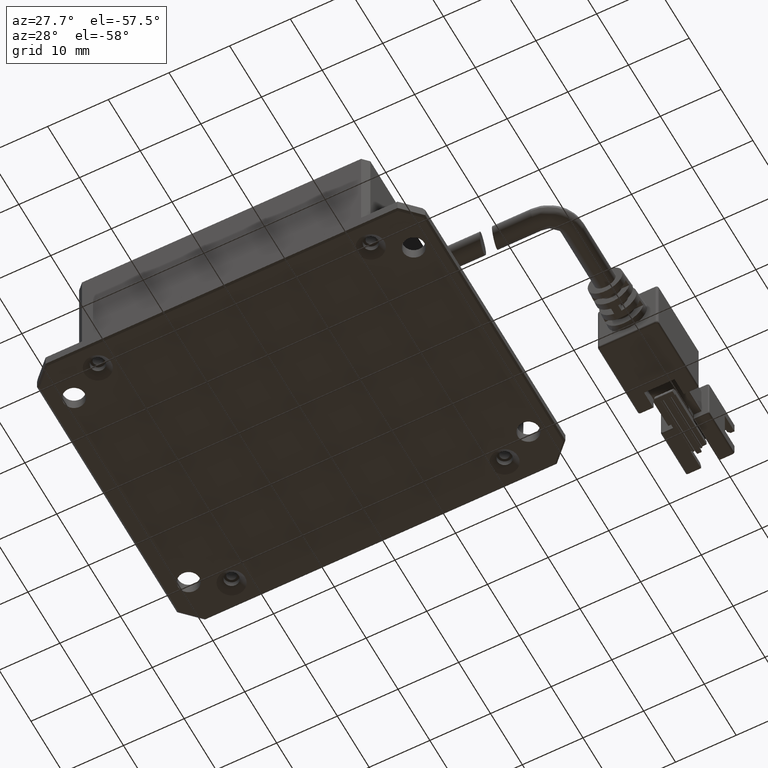
[diagram: clean part render]
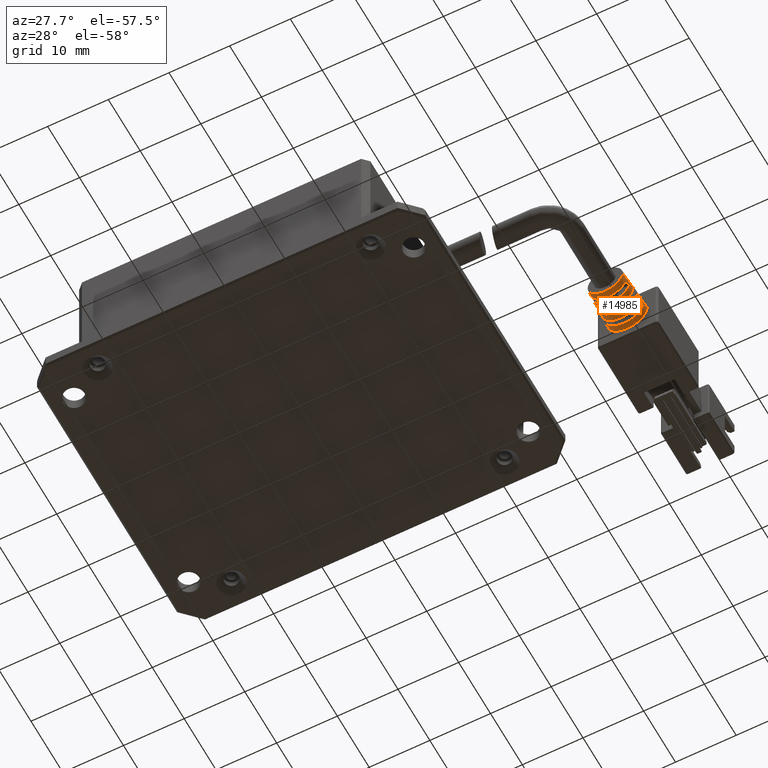
[diagram: same view with one face highlighted and labeled with its STEP entity id]
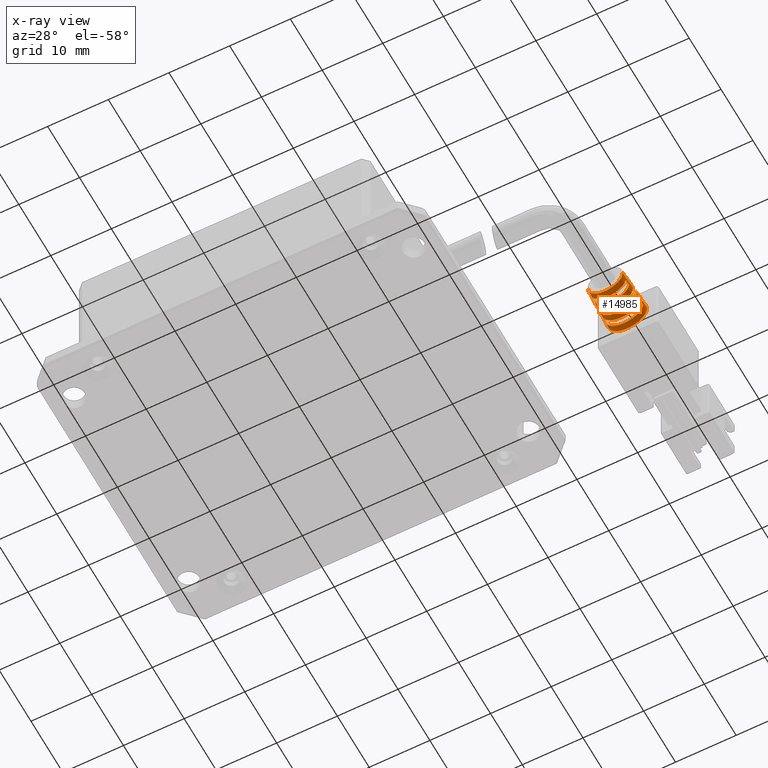
[diagram: x-ray of the same camera — body ghosted, the highlighted face saturated]
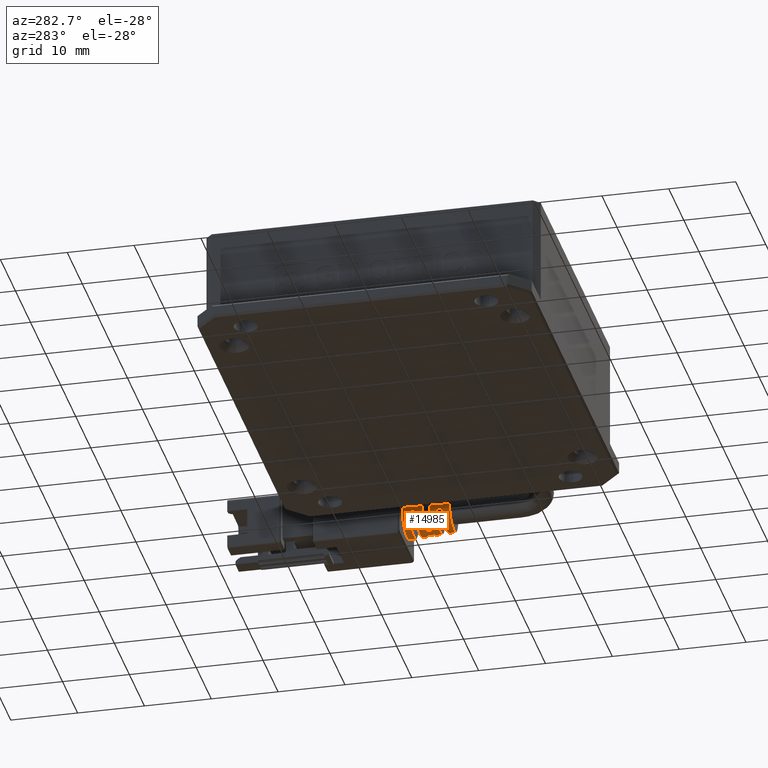
[diagram: same view with one face highlighted and labeled with its STEP entity id]
A machine part, auxiliary view. The second image highlights one B-rep face of the part: STEP entity #14985.
The next image is the same camera in x-ray: the body ghosted, the highlighted face saturated — about 0% of this face is hidden behind the body in this view.
A second angle (auxiliary view) of the same face is appended — the face is thin or edge-on in the first view.
In plain terms, the highlighted conical surface has half-angle 3 deg.
Its self-contained STEP definition (entity closure, byte-faithful):
#95 = CARTESIAN_POINT ( 'NONE',  ( 49.98459327750433100, 7.624283713995430900, 4.399999999983693400 ) ) ;
#166 = CARTESIAN_POINT ( 'NONE',  ( 50.00243233515712400, 7.957617054111669800, 4.399999999983693400 ) ) ;
#194 = DIRECTION ( 'NONE',  ( 1.000000000000000000, 0.0000000000000000000, 0.0000000000000000000 ) ) ;
#291 = CARTESIAN_POINT ( 'NONE',  ( 50.19838510704384000, 11.62428378490377600, 4.399999999983692500 ) ) ;
#408 = EDGE_CURVE ( 'NONE', #7452, #12110, #19305, .T. ) ;
#410 = CARTESIAN_POINT ( 'NONE',  ( 47.69316533027874500, 9.290950744543735600, 2.019422380812576200 ) ) ;
#843 = CARTESIAN_POINT ( 'NONE',  ( 44.20173738305315000, 7.624283713995428300, 4.399999999983693400 ) ) ;
#869 = VERTEX_POINT ( 'NONE', #17226 ) ;
#933 = CARTESIAN_POINT ( 'NONE',  ( 47.69316533027874500, 10.29095074456608200, 1.965981627932517100 ) ) ;
#944 = CARTESIAN_POINT ( 'NONE',  ( 47.09316533027874400, 11.29095074454948400, 4.999999999983692200 ) ) ;
#1109 = ORIENTED_EDGE ( 'NONE', *, *, #9776, .T. ) ;
#1118 = AXIS2_PLACEMENT_3D ( 'NONE', #6241, #17336, #7830 ) ;
#1716 = CARTESIAN_POINT ( 'NONE',  ( 49.96674729706215600, 7.290950744573130700, 4.399999999983693400 ) ) ;
#1800 = EDGE_CURVE ( 'NONE', #2481, #8636, #16428, .T. ) ;
#1840 = ORIENTED_EDGE ( 'NONE', *, *, #7824, .T. ) ;
#1952 = DIRECTION ( 'NONE',  ( -3.081487911019577400E-033, 1.000000000000000000, -2.672764710092188000E-049 ) ) ;
#2073 = ORIENTED_EDGE ( 'NONE', *, *, #20107, .T. ) ;
#2086 = DIRECTION ( 'NONE',  ( -3.081487911019577400E-033, 1.000000000000000000, -2.672764710092188000E-049 ) ) ;
#2205 = FACE_BOUND ( 'NONE', #13604, .T. ) ;
#2280 = CARTESIAN_POINT ( 'NONE',  ( 43.84316533027973200, 13.29095074455903400, 4.999999999983691300 ) ) ;
#2481 = VERTEX_POINT ( 'NONE', #2280 ) ;
#2499 = DIRECTION ( 'NONE',  ( 0.05233595624279531500, 0.9986295347545816000, 4.539420596603585100E-018 ) ) ;
#2511 = CARTESIAN_POINT ( 'NONE',  ( 47.69316533027874500, 9.624283752028095100, 2.001602699982296200 ) ) ;
#2528 = DIRECTION ( 'NONE',  ( 1.000000000000000000, 0.0000000000000000000, -8.273235679558057500E-016 ) ) ;
#2546 = EDGE_CURVE ( 'NONE', #6537, #18254, #18385, .T. ) ;
#2613 = CARTESIAN_POINT ( 'NONE',  ( 46.49316533027874200, 9.290950744549483900, 2.019422380812268900 ) ) ;
#2811 = ORIENTED_EDGE ( 'NONE', *, *, #14693, .T. ) ;
#2862 = AXIS2_PLACEMENT_3D ( 'NONE', #4806, #15853, #6373 ) ;
#3037 = DIRECTION ( 'NONE',  ( -3.081487911019577400E-033, 1.000000000000000000, -2.672764710092188000E-049 ) ) ;
#3279 = CARTESIAN_POINT ( 'NONE',  ( 50.02026484285691100, 8.290950744562678700, 4.399999999983693400 ) ) ;
#3366 = DIRECTION ( 'NONE',  ( 1.000000000000000000, 0.0000000000000000000, 0.0000000000000000000 ) ) ;
#3558 = ORIENTED_EDGE ( 'NONE', *, *, #12934, .T. ) ;
#3697 = EDGE_CURVE ( 'NONE', #20448, #5972, #14885, .T. ) ;
#3877 = CARTESIAN_POINT ( 'NONE',  ( 50.34316533026584000, 13.29095074433166000, 4.999999999983692200 ) ) ;
#4009 = CARTESIAN_POINT ( 'NONE',  ( 44.16606581770064800, 8.290950744561307300, 4.399999999983692500 ) ) ;
#4320 = ORIENTED_EDGE ( 'NONE', *, *, #6756, .T. ) ;
#4342 = ORIENTED_EDGE ( 'NONE', *, *, #4857, .F. ) ;
#4343 = CIRCLE ( 'NONE', #7062, 3.092776662151075500 ) ;
#4364 = LINE ( 'NONE', #7913, #12210 ) ;
#4498 = DIRECTION ( 'NONE',  ( -3.081487911019577400E-033, 1.000000000000000000, -2.672764710092188000E-049 ) ) ;
#4557 = ORIENTED_EDGE ( 'NONE', *, *, #6462, .T. ) ;
#4666 = AXIS2_PLACEMENT_3D ( 'NONE', #12474, #3037, #14070 ) ;
#4711 = CIRCLE ( 'NONE', #19466, 2.935553324303140400 ) ;
#4806 = CARTESIAN_POINT ( 'NONE',  ( 47.09316533027874400, 13.29095074455903400, 4.999999999983692200 ) ) ;
#4857 = EDGE_CURVE ( 'NONE', #13878, #8636, #14877, .T. ) ;
#5053 = ORIENTED_EDGE ( 'NONE', *, *, #10345, .T. ) ;
#5080 = CARTESIAN_POINT ( 'NONE',  ( 47.09316533027874400, 9.290950744539934200, 4.999999999983692200 ) ) ;
#5294 = EDGE_CURVE ( 'NONE', #5972, #19562, #8407, .T. ) ;
#5368 = CARTESIAN_POINT ( 'NONE',  ( 50.18058904117948100, 11.29095074455425900, 4.399999999983692500 ) ) ;
#5551 = ORIENTED_EDGE ( 'NONE', *, *, #5294, .T. ) ;
#5621 = VERTEX_POINT ( 'NONE', #5910 ) ;
#5718 = CIRCLE ( 'NONE', #4666, 2.883145545018506200 ) ;
#5780 = CARTESIAN_POINT ( 'NONE',  ( 46.49316533027874200, 10.29095074457030800, 1.965981627932291500 ) ) ;
#5910 = CARTESIAN_POINT ( 'NONE',  ( 44.05279644741229800, 9.290950744539934200, 4.999999999983691300 ) ) ;
#5972 = VERTEX_POINT ( 'NONE', #14662 ) ;
#6200 = CARTESIAN_POINT ( 'NONE',  ( 50.18594199242981800, 10.29095074457313100, 4.999999999983692200 ) ) ;
#6241 = CARTESIAN_POINT ( 'NONE',  ( 47.09316533027874400, 9.290950744539934200, 4.999999999983692200 ) ) ;
#6373 = DIRECTION ( 'NONE',  ( 1.000000000000000000, 0.0000000000000000000, 0.0000000000000000000 ) ) ;
#6439 = CARTESIAN_POINT ( 'NONE',  ( 43.95236988803991100, 12.29095074457085700, 4.399999999983691600 ) ) ;
#6462 = EDGE_CURVE ( 'NONE', #869, #20448, #15843, .T. ) ;
#6493 = CARTESIAN_POINT ( 'NONE',  ( 47.09316533027874400, 13.29095074433166000, 4.999999999983692200 ) ) ;
#6537 = VERTEX_POINT ( 'NONE', #13807 ) ;
#6652 = VECTOR ( 'NONE', #2499, 1000.000000000000200 ) ;
#6656 = DIRECTION ( 'NONE',  ( 1.000000000000000000, 0.0000000000000000000, 8.558452326718922600E-016 ) ) ;
#6756 = EDGE_CURVE ( 'NONE', #18254, #10817, #4711, .T. ) ;
#6841 = EDGE_CURVE ( 'NONE', #13878, #12839, #14822, .T. ) ;
#7062 = AXIS2_PLACEMENT_3D ( 'NONE', #11516, #2086, #13092 ) ;
#7286 = ORIENTED_EDGE ( 'NONE', *, *, #9604, .T. ) ;
#7287 = CARTESIAN_POINT ( 'NONE',  ( 50.02026484285691100, 8.290950744562678700, 4.399999999983693400 ) ) ;
#7452 = VERTEX_POINT ( 'NONE', #18480 ) ;
#7497 = ORIENTED_EDGE ( 'NONE', *, *, #2546, .T. ) ;
#7555 = CARTESIAN_POINT ( 'NONE',  ( 50.34316533026584000, 13.29095074433166000, 4.999999999983692200 ) ) ;
#7824 = EDGE_CURVE ( 'NONE', #19562, #869, #18172, .T. ) ;
#7830 = DIRECTION ( 'NONE',  ( 1.000000000000000000, 0.0000000000000000000, -8.558452326718922600E-016 ) ) ;
#7913 = CARTESIAN_POINT ( 'NONE',  ( 43.84316533029164700, 13.29095074433166000, 4.999999999983691300 ) ) ;
#8035 = CARTESIAN_POINT ( 'NONE',  ( 43.98794555351364700, 11.62428378490378100, 4.399999999983692500 ) ) ;
#8121 = CONICAL_SURFACE ( 'NONE', #15042, 3.249999999987096500, 0.05235987755968116900 ) ;
#8407 = CIRCLE ( 'NONE', #15637, 3.197592220717360200 ) ;
#8636 = VERTEX_POINT ( 'NONE', #16683 ) ;
#8672 = CARTESIAN_POINT ( 'NONE',  ( 47.09316533027874400, 8.290950744563581100, 4.999999999983692200 ) ) ;
#8902 = VERTEX_POINT ( 'NONE', #410 ) ;
#9230 = CARTESIAN_POINT ( 'NONE',  ( 50.13353421314518200, 9.290950744539934200, 4.999999999983692200 ) ) ;
#9235 = ORIENTED_EDGE ( 'NONE', *, *, #3697, .T. ) ;
#9468 = CARTESIAN_POINT ( 'NONE',  ( 47.69316533027874500, 10.29095074456608200, 1.965981627932517100 ) ) ;
#9474 = AXIS2_PLACEMENT_3D ( 'NONE', #11372, #1952, #12955 ) ;
#9582 = DIRECTION ( 'NONE',  ( 3.081487911019577400E-033, -1.000000000000000000, 2.672764710092188000E-049 ) ) ;
#9604 = EDGE_CURVE ( 'NONE', #12839, #8902, #15572, .T. ) ;
#9776 = EDGE_CURVE ( 'NONE', #7452, #11273, #5718, .T. ) ;
#9950 = ORIENTED_EDGE ( 'NONE', *, *, #17046, .T. ) ;
#10065 = LINE ( 'NONE', #10608, #18051 ) ;
#10222 = DIRECTION ( 'NONE',  ( 1.000000000000000000, 0.0000000000000000000, 0.0000000000000000000 ) ) ;
#10224 = CARTESIAN_POINT ( 'NONE',  ( 44.21001978526023600, 6.290950744554031400, 4.999999999983691300 ) ) ;
#10232 = VERTEX_POINT ( 'NONE', #15073 ) ;
#10266 = AXIS2_PLACEMENT_3D ( 'NONE', #944, #11948, #2528 ) ;
#10345 = EDGE_CURVE ( 'NONE', #19122, #2481, #10065, .T. ) ;
#10549 = EDGE_CURVE ( 'NONE', #10817, #16793, #11742, .T. ) ;
#10570 = FACE_OUTER_BOUND ( 'NONE', #19838, .T. ) ;
#10608 = CARTESIAN_POINT ( 'NONE',  ( 43.84316533029164700, 13.29095074433166000, 4.999999999983691300 ) ) ;
#10611 = CIRCLE ( 'NONE', #12990, 2.987961103584790800 ) ;
#10817 = VERTEX_POINT ( 'NONE', #13347 ) ;
#11204 = CARTESIAN_POINT ( 'NONE',  ( 50.21617559090000800, 11.95761712331011300, 4.399999999983692500 ) ) ;
#11273 = VERTEX_POINT ( 'NONE', #10224 ) ;
#11372 = CARTESIAN_POINT ( 'NONE',  ( 47.09316533027874400, 10.29095074457313100, 4.999999999983692200 ) ) ;
#11516 = CARTESIAN_POINT ( 'NONE',  ( 47.09316533027874400, 10.29095074457313100, 4.999999999983692200 ) ) ;
#11742 = B_SPLINE_CURVE_WITH_KNOTS ( 'NONE', 3,
 ( #1716, #95, #166, #3279 ),
 .UNSPECIFIED., .F., .F.,
 ( 4, 4 ),
 ( 2.821323884305459600E-015, 0.001001431039903067500 ),
 .UNSPECIFIED. ) ;
#11837 = CARTESIAN_POINT ( 'NONE',  ( 44.18389832540035700, 7.957617054111668900, 4.399999999983692500 ) ) ;
#11948 = DIRECTION ( 'NONE',  ( 3.081487911019577400E-033, -1.000000000000000000, 2.672764710092188000E-049 ) ) ;
#12110 = VERTEX_POINT ( 'NONE', #9230 ) ;
#12210 = VECTOR ( 'NONE', #14179, 1000.000000000000200 ) ;
#12474 = CARTESIAN_POINT ( 'NONE',  ( 47.09316533027874400, 6.290950744554031400, 4.999999999983692200 ) ) ;
#12623 = VERTEX_POINT ( 'NONE', #18338 ) ;
#12742 = DIRECTION ( 'NONE',  ( -3.081487911019577400E-033, 1.000000000000000000, -2.672764710092188000E-049 ) ) ;
#12827 = EDGE_CURVE ( 'NONE', #11273, #5621, #4364, .T. ) ;
#12839 = VERTEX_POINT ( 'NONE', #9468 ) ;
#12863 = CARTESIAN_POINT ( 'NONE',  ( 50.18058904117948100, 11.29095074455425900, 4.399999999983692500 ) ) ;
#12931 = ORIENTED_EDGE ( 'NONE', *, *, #408, .F. ) ;
#12934 = EDGE_CURVE ( 'NONE', #8902, #12110, #14449, .T. ) ;
#12955 = DIRECTION ( 'NONE',  ( 1.000000000000000000, 0.0000000000000000000, 0.0000000000000000000 ) ) ;
#12990 = AXIS2_PLACEMENT_3D ( 'NONE', #8672, #19764, #10222 ) ;
#13092 = DIRECTION ( 'NONE',  ( 1.000000000000000000, 0.0000000000000000000, 0.0000000000000000000 ) ) ;
#13194 = CIRCLE ( 'NONE', #1118, 3.040368882866441200 ) ;
#13347 = CARTESIAN_POINT ( 'NONE',  ( 49.96674729706215600, 7.290950744573130700, 4.399999999983693400 ) ) ;
#13519 = CARTESIAN_POINT ( 'NONE',  ( 47.69316533027874500, 9.290950744543735600, 2.019422380812576200 ) ) ;
#13604 = EDGE_LOOP ( 'NONE', ( #17660, #2811, #7497, #4320 ) ) ;
#13617 = CARTESIAN_POINT ( 'NONE',  ( 46.49316533027874200, 9.624283752028095100, 2.001602699982295800 ) ) ;
#13657 = ORIENTED_EDGE ( 'NONE', *, *, #12827, .T. ) ;
#13674 = ORIENTED_EDGE ( 'NONE', *, *, #6841, .T. ) ;
#13807 = CARTESIAN_POINT ( 'NONE',  ( 44.16606581770064800, 8.290950744561307300, 4.399999999983692500 ) ) ;
#13878 = VERTEX_POINT ( 'NONE', #6200 ) ;
#13920 = CARTESIAN_POINT ( 'NONE',  ( 47.09316533027874400, 12.29095074458268000, 4.999999999983692200 ) ) ;
#14070 = DIRECTION ( 'NONE',  ( 1.000000000000000000, 0.0000000000000000000, 0.0000000000000000000 ) ) ;
#14179 = DIRECTION ( 'NONE',  ( -0.05233595624279531500, 0.9986295347545816000, -1.094872672590910900E-017 ) ) ;
#14297 = FACE_BOUND ( 'NONE', #16601, .T. ) ;
#14307 = CARTESIAN_POINT ( 'NONE',  ( 43.97015506965748000, 11.95761712331011500, 4.399999999983691600 ) ) ;
#14334 = CARTESIAN_POINT ( 'NONE',  ( 44.21958336349486300, 7.290950744581584400, 4.399999999983693400 ) ) ;
#14449 = CIRCLE ( 'NONE', #16336, 3.040368882866441200 ) ;
#14488 = CARTESIAN_POINT ( 'NONE',  ( 50.23396077251794600, 12.29095074457793800, 4.399999999983692500 ) ) ;
#14662 = CARTESIAN_POINT ( 'NONE',  ( 50.23396077251794600, 12.29095074457793800, 4.399999999983692500 ) ) ;
#14693 = EDGE_CURVE ( 'NONE', #16793, #6537, #10611, .T. ) ;
#14822 = CIRCLE ( 'NONE', #9474, 3.092776662151075500 ) ;
#14877 = LINE ( 'NONE', #7555, #19127 ) ;
#14885 = B_SPLINE_CURVE_WITH_KNOTS ( 'NONE', 3,
 ( #12863, #291, #11204, #14488 ),
 .UNSPECIFIED., .F., .F.,
 ( 4, 4 ),
 ( 9.466711998563855400E-016, 0.001001423258045926400 ),
 .UNSPECIFIED. ) ;
#14985 = ADVANCED_FACE ( 'NONE', ( #14297, #2205, #10570 ), #8121, .T. ) ;
#15042 = AXIS2_PLACEMENT_3D ( 'NONE', #6493, #12742, #3366 ) ;
#15054 = CARTESIAN_POINT ( 'NONE',  ( 44.21958336349486300, 7.290950744581584400, 4.399999999983693400 ) ) ;
#15073 = CARTESIAN_POINT ( 'NONE',  ( 46.49316533027874200, 9.290950744549483900, 2.019422380812268900 ) ) ;
#15233 = CARTESIAN_POINT ( 'NONE',  ( 46.49316533027874200, 9.957617091215672300, 1.983789223055079800 ) ) ;
#15350 = CARTESIAN_POINT ( 'NONE',  ( 44.00038866812766300, 10.29095074457313100, 4.999999999983691300 ) ) ;
#15524 = DIRECTION ( 'NONE',  ( 1.000000000000000000, 0.0000000000000000000, 0.0000000000000000000 ) ) ;
#15572 = B_SPLINE_CURVE_WITH_KNOTS ( 'NONE', 3,
 ( #933, #19826, #2511, #13519 ),
 .UNSPECIFIED., .F., .F.,
 ( 4, 4 ),
 ( 1.405395367116548100E-015, 0.001001426938980521700 ),
 .UNSPECIFIED. ) ;
#15637 = AXIS2_PLACEMENT_3D ( 'NONE', #13920, #4498, #15524 ) ;
#15843 = CIRCLE ( 'NONE', #10266, 3.145184441432725900 ) ;
#15853 = DIRECTION ( 'NONE',  ( 3.081487911019577400E-033, -1.000000000000000000, 2.672764710092188000E-049 ) ) ;
#16144 = DIRECTION ( 'NONE',  ( 3.081487911019577400E-033, -1.000000000000000000, 2.672764710092188000E-049 ) ) ;
#16190 = ORIENTED_EDGE ( 'NONE', *, *, #17261, .T. ) ;
#16293 = B_SPLINE_CURVE_WITH_KNOTS ( 'NONE', 3,
 ( #2613, #13617, #15233, #5780 ),
 .UNSPECIFIED., .F., .F.,
 ( 4, 4 ),
 ( 1.949140732119931800E-015, 0.001001426938979540300 ),
 .UNSPECIFIED. ) ;
#16336 = AXIS2_PLACEMENT_3D ( 'NONE', #5080, #16144, #6656 ) ;
#16428 = CIRCLE ( 'NONE', #2862, 3.249999999999010600 ) ;
#16601 = EDGE_LOOP ( 'NONE', ( #9235, #5551, #1840, #4557 ) ) ;
#16683 = CARTESIAN_POINT ( 'NONE',  ( 50.34316533027774900, 13.29095074455903400, 4.999999999983692200 ) ) ;
#16793 = VERTEX_POINT ( 'NONE', #7287 ) ;
#16835 = CARTESIAN_POINT ( 'NONE',  ( 43.95236988803991100, 12.29095074457085700, 4.399999999983691600 ) ) ;
#17046 = EDGE_CURVE ( 'NONE', #5621, #10232, #13194, .T. ) ;
#17052 = DIRECTION ( 'NONE',  ( -0.05233595624279531500, 0.9986295347545816000, -1.094872672590910900E-017 ) ) ;
#17082 = DIRECTION ( 'NONE',  ( 0.05233595624279531500, 0.9986295347545816000, 4.539420596603585100E-018 ) ) ;
#17226 = CARTESIAN_POINT ( 'NONE',  ( 44.00574161937815600, 11.29095074455140200, 4.399999999983692500 ) ) ;
#17261 = EDGE_CURVE ( 'NONE', #12623, #19122, #4343, .T. ) ;
#17336 = DIRECTION ( 'NONE',  ( 3.081487911019577400E-033, -1.000000000000000000, 2.672764710092188000E-049 ) ) ;
#17660 = ORIENTED_EDGE ( 'NONE', *, *, #10549, .T. ) ;
#17682 = ORIENTED_EDGE ( 'NONE', *, *, #1800, .T. ) ;
#18051 = VECTOR ( 'NONE', #17052, 1000.000000000000200 ) ;
#18172 = B_SPLINE_CURVE_WITH_KNOTS ( 'NONE', 3,
 ( #6439, #14307, #8035, #19140 ),
 .UNSPECIFIED., .F., .F.,
 ( 4, 4 ),
 ( 2.341740480690032800E-015, 0.001001423258043091700 ),
 .UNSPECIFIED. ) ;
#18254 = VERTEX_POINT ( 'NONE', #14334 ) ;
#18338 = CARTESIAN_POINT ( 'NONE',  ( 46.49316533027874200, 10.29095074457030800, 1.965981627932291500 ) ) ;
#18385 = B_SPLINE_CURVE_WITH_KNOTS ( 'NONE', 3,
 ( #4009, #11837, #843, #15054 ),
 .UNSPECIFIED., .F., .F.,
 ( 4, 4 ),
 ( 4.691970052180783900E-016, 0.001001431039896517200 ),
 .UNSPECIFIED. ) ;
#18480 = CARTESIAN_POINT ( 'NONE',  ( 49.97631087529724400, 6.290950744554031400, 4.999999999983692200 ) ) ;
#19122 = VERTEX_POINT ( 'NONE', #15350 ) ;
#19127 = VECTOR ( 'NONE', #17082, 1000.000000000000200 ) ;
#19134 = CARTESIAN_POINT ( 'NONE',  ( 47.09316533027874400, 7.290950744587227900, 4.999999999983692200 ) ) ;
#19140 = CARTESIAN_POINT ( 'NONE',  ( 44.00574161937815600, 11.29095074455140200, 4.399999999983692500 ) ) ;
#19305 = LINE ( 'NONE', #3877, #6652 ) ;
#19466 = AXIS2_PLACEMENT_3D ( 'NONE', #19134, #9582, #194 ) ;
#19562 = VERTEX_POINT ( 'NONE', #16835 ) ;
#19764 = DIRECTION ( 'NONE',  ( -3.081487911019577400E-033, 1.000000000000000000, -2.672764710092188000E-049 ) ) ;
#19826 = CARTESIAN_POINT ( 'NONE',  ( 47.69316533027874500, 9.957617091215672300, 1.983789223055079800 ) ) ;
#19838 = EDGE_LOOP ( 'NONE', ( #1109, #13657, #9950, #2073, #16190, #5053, #17682, #4342, #13674, #7286, #3558, #12931 ) ) ;
#20107 = EDGE_CURVE ( 'NONE', #10232, #12623, #16293, .T. ) ;
#20448 = VERTEX_POINT ( 'NONE', #5368 ) ;